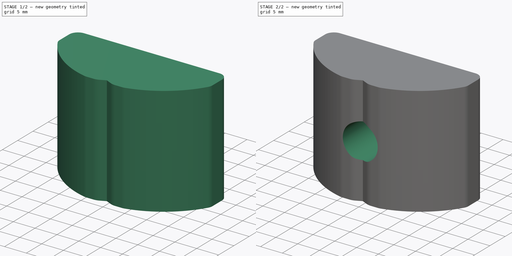
[diagram: build sequence overview — one tinted view per stage of 2, left to right]
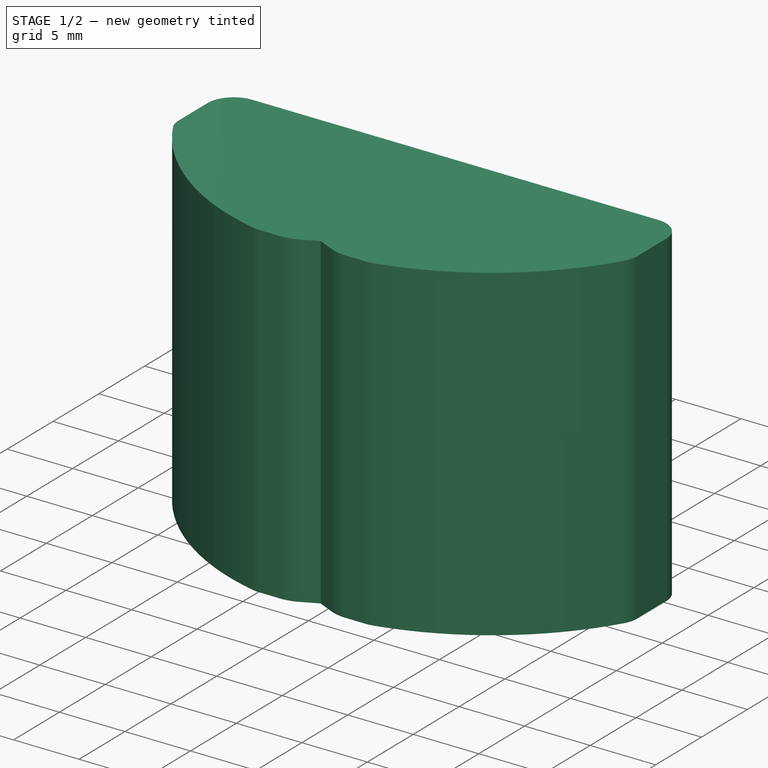
[diagram: stage 1 of 2 — iso view after this stage's code; geometry added in this stage tinted green]
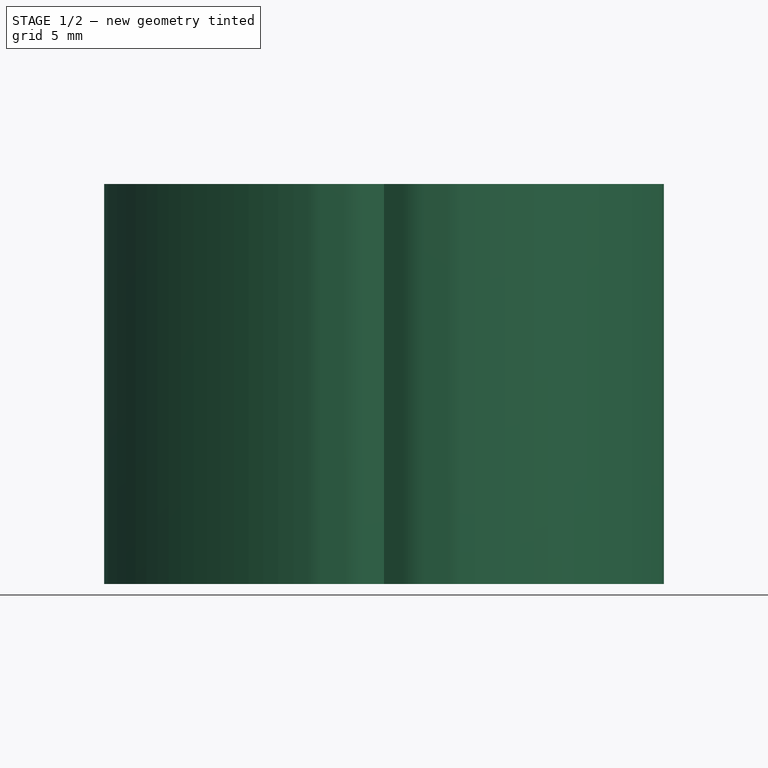
[diagram: stage 1 of 2 — front view after this stage's code; geometry added in this stage tinted green]
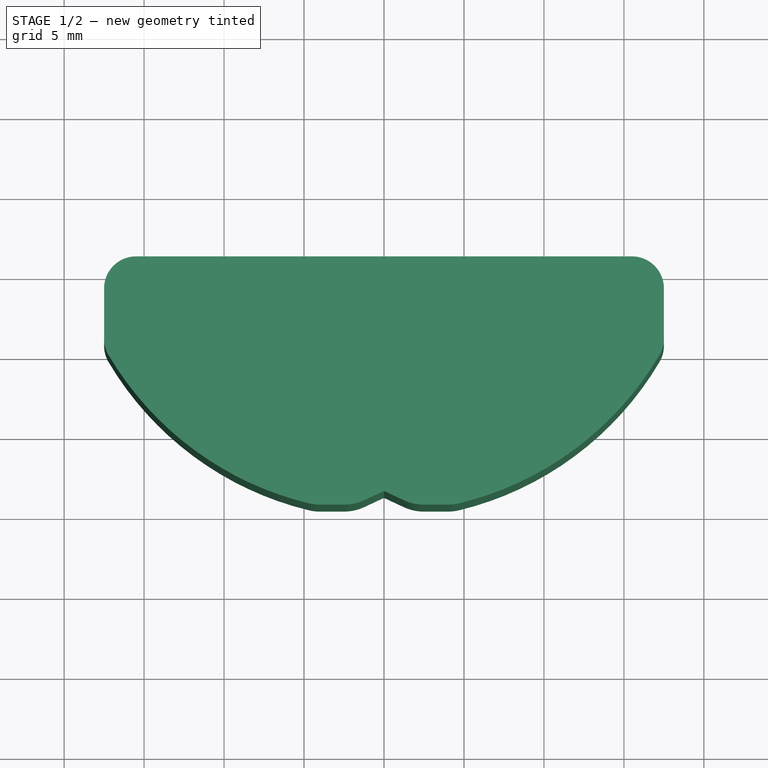
[diagram: stage 1 of 2 — top view after this stage's code; geometry added in this stage tinted green]
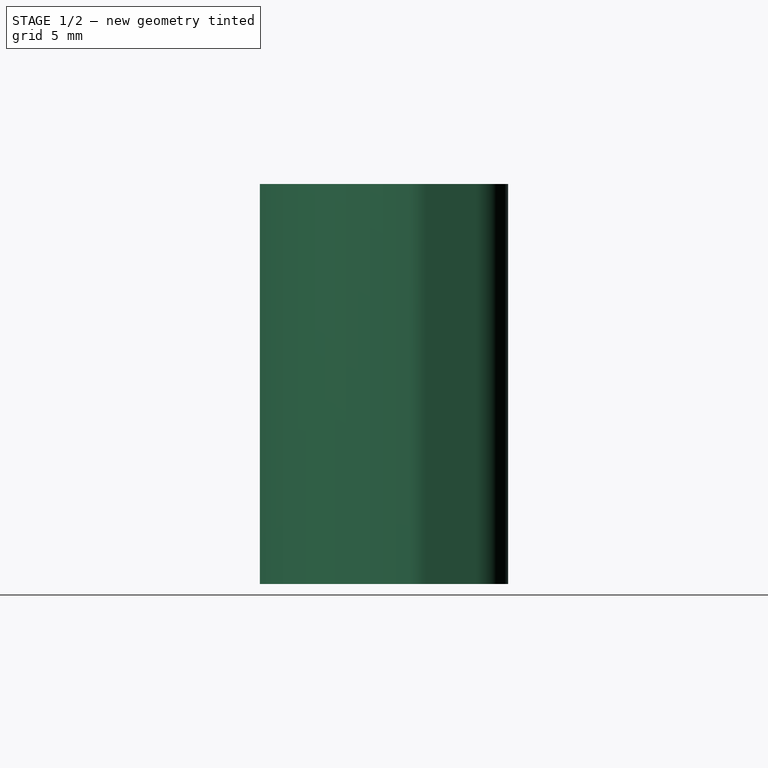
[diagram: stage 1 of 2 — right view after this stage's code; geometry added in this stage tinted green]
FCSTD DOCUMENT  (FreeCAD 0.19R24267 +99 (Git))
Label: V2 Clamp roller halves
License: All rights reserved
LicenseURL: http://en.wikipedia.org/wiki/All_rights_reserved
objects: Sketcher::SketchObject×2, PartDesign::Pad×1, PartDesign::Pocket×1, PartDesign::Body×1
note: 7 computed .brp shape members not serialized (recipe doc carries the construction recipe); baked Part::Feature solids carry a one-line shape summary decoded from their .brp

FEATURE [Sketcher::SketchObject] Sketch
  FullyConstrained = true
  MapMode = 5
  Support = -> [XY_Plane]
  sketch-geometry (17):
    g0: ArcOfCircle CenterX=0 CenterY=0 CenterZ=0 NormalX=0 NormalY=0 NormalZ=1 AngleXU=0 Radius=20 StartAngle=3.67494 EndAngle=4.47487
    g1: ArcOfCircle CenterX=0 CenterY=0 CenterZ=0 NormalX=0 NormalY=0 NormalZ=1 AngleXU=0 Radius=20 StartAngle=4.94991 EndAngle=5.74984
    g2: ArcOfCircle CenterX=-4 CenterY=-16.5227 CenterZ=0 NormalX=0 NormalY=0 NormalZ=1 AngleXU=0 Radius=3 StartAngle=4.47487 EndAngle=4.71239
    g3: ArcOfCircle CenterX=4 CenterY=-16.5227 CenterZ=0 NormalX=0 NormalY=0 NormalZ=1 AngleXU=0 Radius=3 StartAngle=4.71239 EndAngle=4.94991
    g4: LineSegment StartX=-4 StartY=-19.5227 StartZ=0 EndX=-2.5 EndY=-19.5227 EndZ=0
    g5: LineSegment StartX=-1.23215 StartY=-19.2416 StartZ=0 EndX=0 EndY=-18.6671 EndZ=0
    g6: LineSegment StartX=0 StartY=-18.6671 StartZ=0 EndX=1.23215 EndY=-19.2416 EndZ=0
    g7: LineSegment StartX=2.5 StartY=-19.5227 StartZ=0 EndX=4 EndY=-19.5227 EndZ=0
    g8: ArcOfCircle CenterX=-2.5 CenterY=-16.5227 CenterZ=0 NormalX=0 NormalY=0 NormalZ=1 AngleXU=0 Radius=3 StartAngle=4.71239 EndAngle=5.14872
    g9: ArcOfCircle CenterX=2.5 CenterY=-16.5227 CenterZ=0 NormalX=0 NormalY=0 NormalZ=1 AngleXU=0 Radius=3 StartAngle=4.27606 EndAngle=4.71239
    g10: ArcOfCircle CenterX=-15.5 CenterY=-9.1515 CenterZ=0 NormalX=0 NormalY=0 NormalZ=1 AngleXU=0 Radius=2 StartAngle=3.14159 EndAngle=3.67494
    g11: ArcOfCircle CenterX=15.5 CenterY=-9.1515 CenterZ=0 NormalX=0 NormalY=0 NormalZ=1 AngleXU=0 Radius=2 StartAngle=5.74984 EndAngle=6.28319
    g12: LineSegment StartX=-17.5 StartY=-9.1515 StartZ=0 EndX=-17.5 EndY=-6 EndZ=0
    g13: LineSegment StartX=17.5 StartY=-9.1515 StartZ=0 EndX=17.5 EndY=-6 EndZ=0
    g14: LineSegment StartX=-15.5 StartY=-4 StartZ=0 EndX=15.5 EndY=-4 EndZ=0
    g15: ArcOfCircle CenterX=-15.5 CenterY=-6 CenterZ=0 NormalX=0 NormalY=0 NormalZ=1 AngleXU=0 Radius=2 StartAngle=1.5708 EndAngle=3.14159
    g16: ArcOfCircle CenterX=15.5 CenterY=-6 CenterZ=0 NormalX=0 NormalY=0 NormalZ=1 AngleXU=0 Radius=2 StartAngle=2e-16 EndAngle=1.5708
  constraints (40):
    c: Coincident(g0,g-1)
    c: Radius(g0) = 20
    c: Equal(g0,g1)
    c: Coincident(g0,g1)
    c: Tangent(g0,g2) = -1.5708
    c: Tangent(g1,g3) = -1.5708
    c: Radius(g3) = 3
    c: Tangent(g4,g2) = -1.5708
    c: DistanceX(g2,g3) = 8
    c: PointOnObject(g5,g-2)
    c: Coincident(g6,g5)
    c: Tangent(g4,g7)
    c: Tangent(g5,g8) = -1.5708
    c: Tangent(g4,g8) = -1.5708
    c: Tangent(g6,g9) = -1.5708
    c: Tangent(g7,g9) = -1.5708
    c: Symmetric(g4,g7,g-2)
    c: Angle(g5,g6) = 2.26893
    c: DistanceX(g4,g7) = 5
    c: Equal(g8,g9)
    c: Equal(g9,g3)
    c: Tangent(g7,g3) = -1.5708
    c: Equal(g3,g2)
    c: Tangent(g0,g10) = -1.5708
    c: Tangent(g1,g11) = -1.5708
    c: Vertical(g13)
    c: Vertical(g12)
    c: Tangent(g14,g15) = 1.5708
    c: Tangent(g12,g15) = 1.5708
    c: Tangent(g14,g16) = 1.5708
    c: Tangent(g13,g16) = -1.5708
    c: DistanceY(g14,g0) = 4
    c: Tangent(g11,g13) = -1.5708
    c: Tangent(g10,g12) = 1.5708
    c: Equal(g16,g15)
    c: Radius(g16) = 2
    c: Equal(g11,g16)
    c: Equal(g16,g10)
    c: Symmetric(g14,g14,g-2)
    c: DistanceX(g12,g13) = 35
FEATURE [PartDesign::Pad] Pad
  Direction = (1,1,1)
  Length = 25
  Length2 = 100
  Midplane = true
  Profile = -> Sketch
  Type = 0
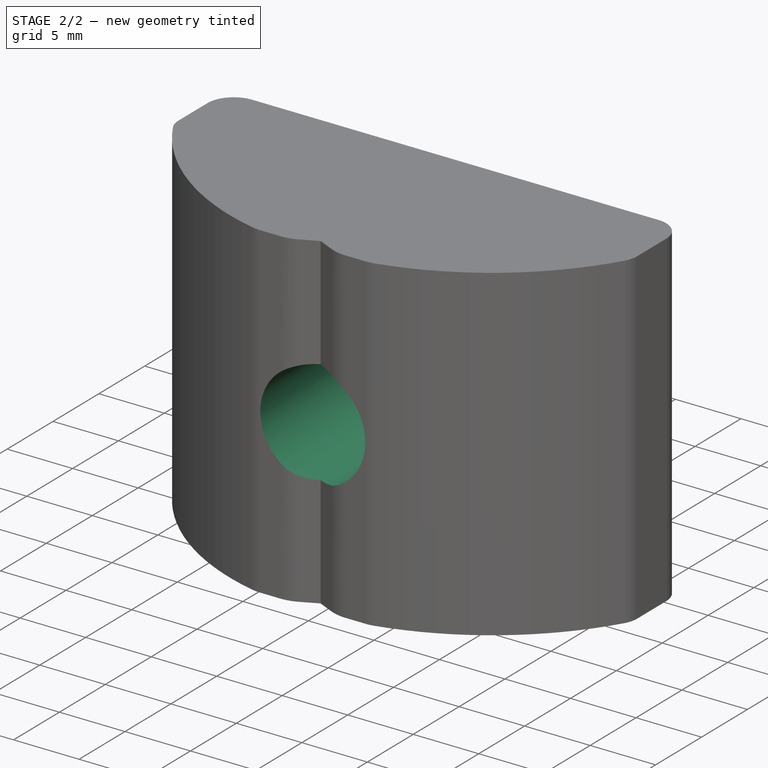
[diagram: stage 2 of 2 — iso view after this stage's code; geometry added in this stage tinted green]
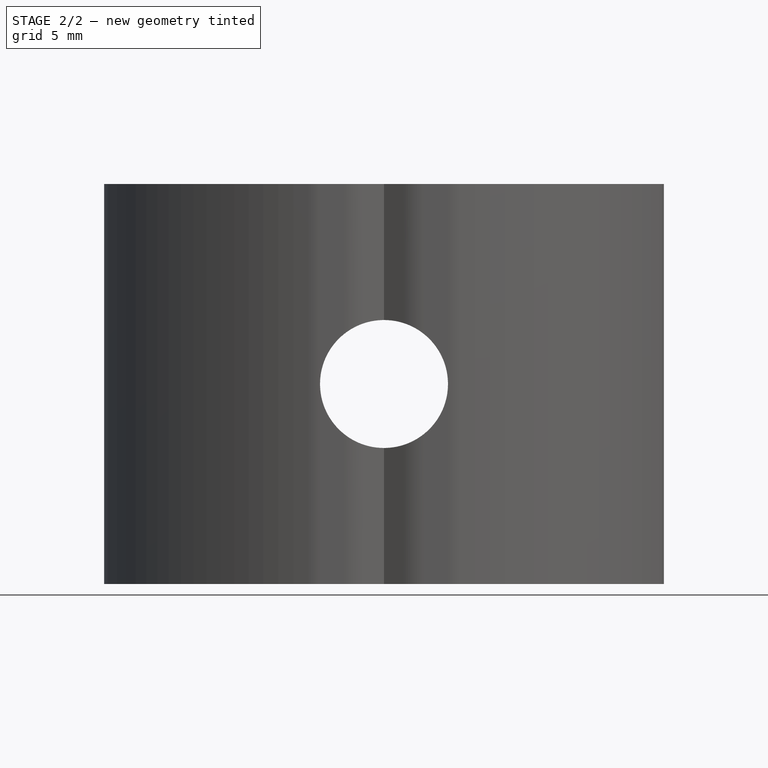
[diagram: stage 2 of 2 — front view after this stage's code; geometry added in this stage tinted green]
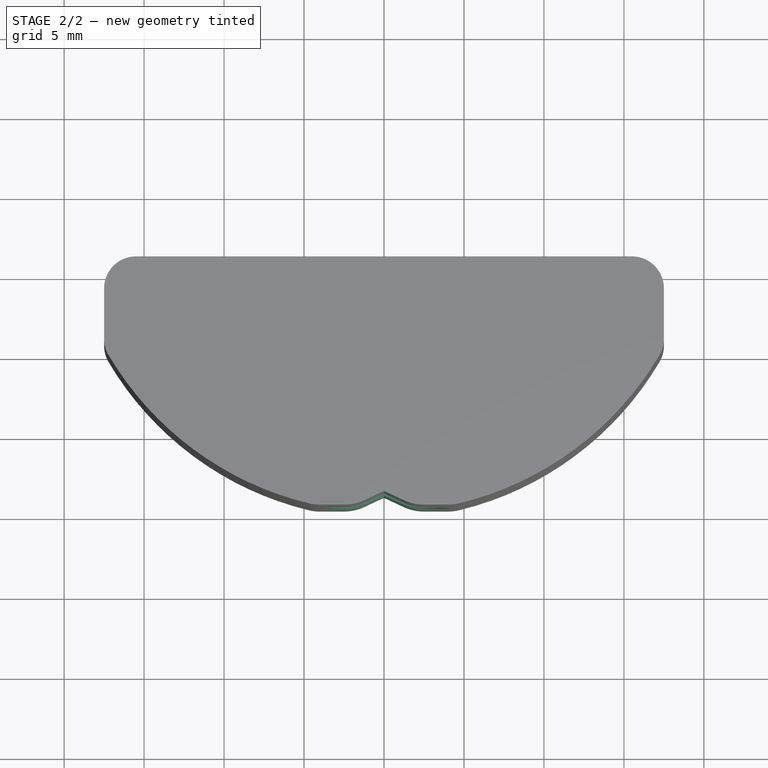
[diagram: stage 2 of 2 — top view after this stage's code; geometry added in this stage tinted green]
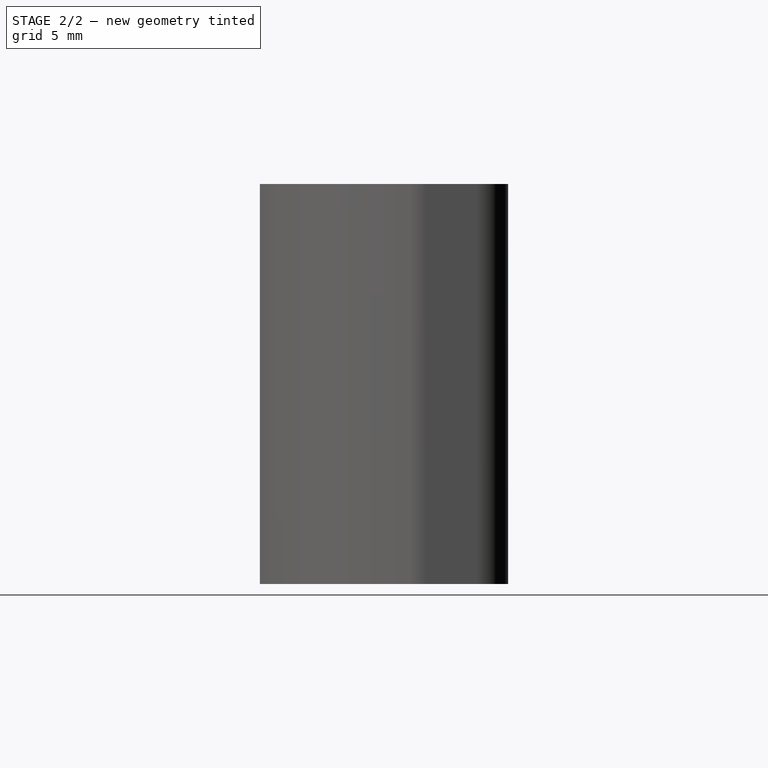
[diagram: stage 2 of 2 — right view after this stage's code; geometry added in this stage tinted green]
FEATURE [Sketcher::SketchObject] Sketch001  label="Through hole 8mm drill/M8 tap sketch"
  FullyConstrained = true
  MapMode = 5
  Placement = pos=(0,0,0) rot=(1,0,0;1.5708rad)
  Support = -> [XZ_Plane]
  sketch-geometry (1):
    g0: Circle CenterX=0 CenterY=0 CenterZ=0 NormalX=0 NormalY=0 NormalZ=1 AngleXU=0 Radius=4
  constraints (2):
    c: Radius(g0) = 4
    c: Coincident(g0,g-1)
FEATURE [PartDesign::Pocket] Pocket  label="Through hole 8mm drill/M8 tap"
  BaseFeature = -> Pad
  Length = 5
  Length2 = 100
  Midplane = true
  Profile = -> Sketch001
  Type = 1
FEATURE [PartDesign::Body] Body
  Group = -> [Sketch,Pad,Sketch001,Pocket]
  Origin = -> Origin
  Tip = -> Pocket
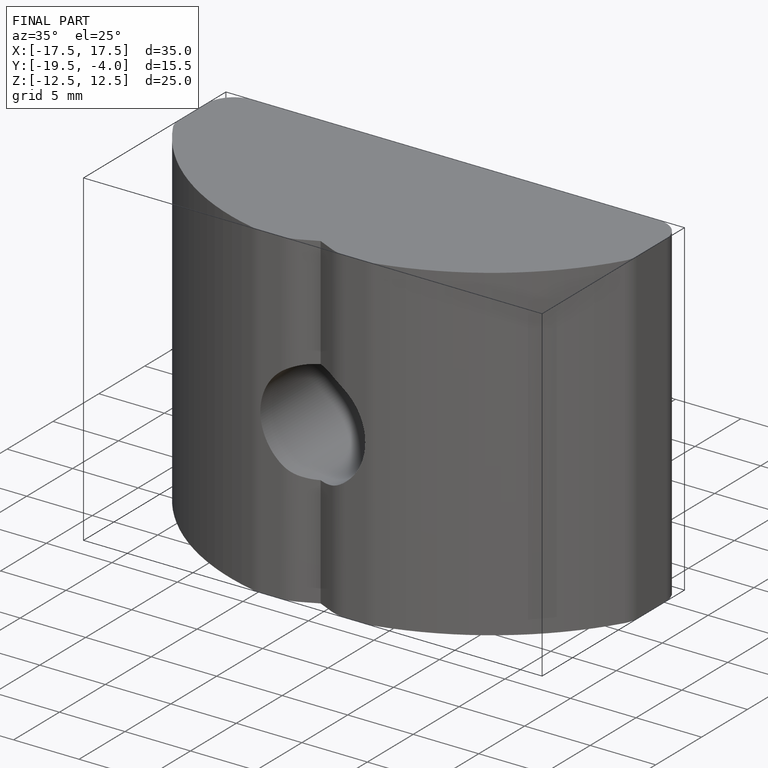
[diagram: finished part — iso view with bounding-box wireframe]
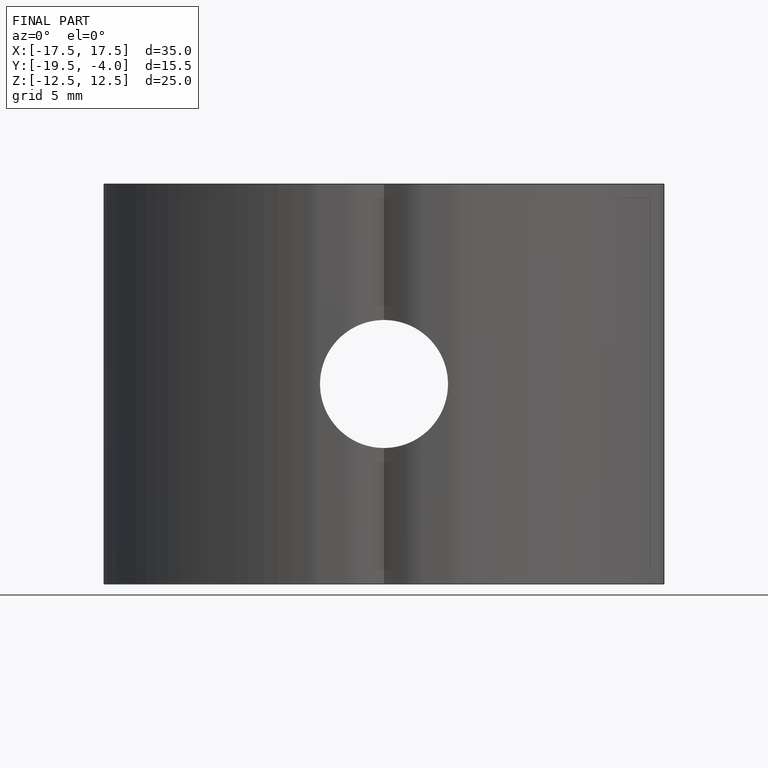
[diagram: finished part — front view with bounding-box wireframe]
